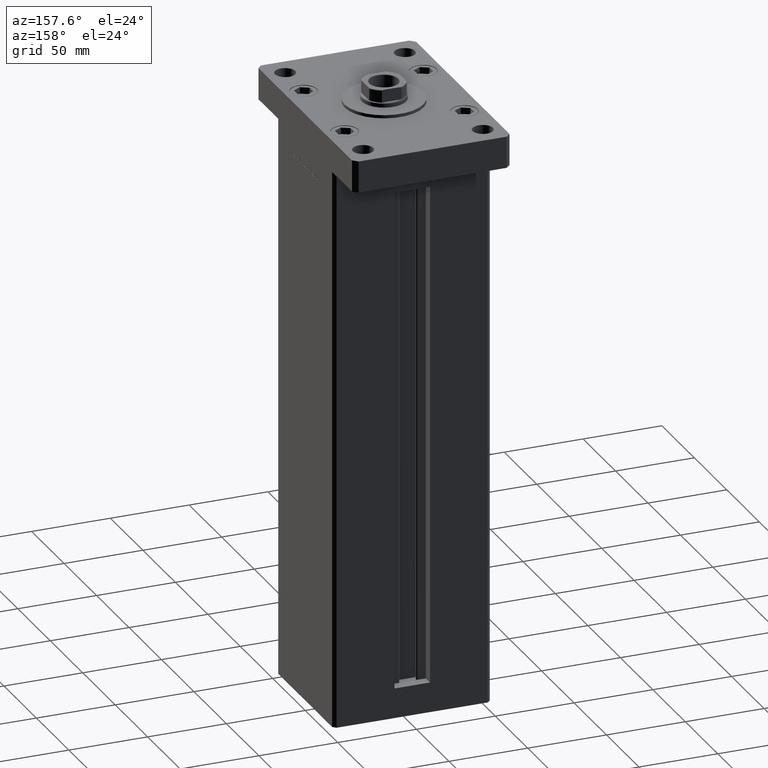
[diagram: clean part render]
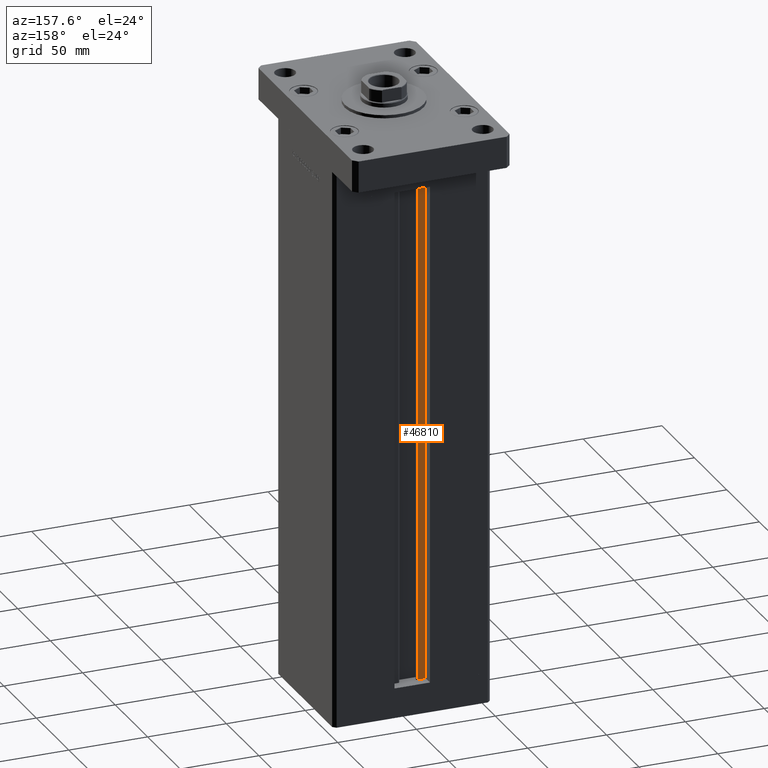
[diagram: same view with one face highlighted and labeled with its STEP entity id]
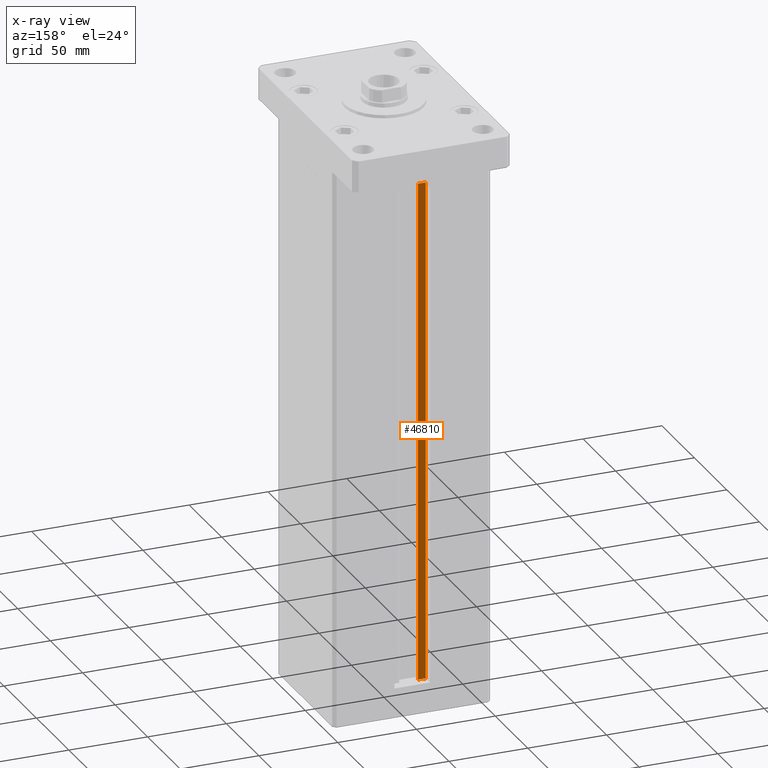
[diagram: x-ray of the same camera — body ghosted, the highlighted face saturated]
A machine part, auxiliary view. The second image highlights one B-rep face of the part: STEP entity #46810.
The next image is the same camera in x-ray: the body ghosted, the highlighted face saturated — about 0% of this face is hidden behind the body in this view.
In plain terms, the highlighted planar face has unit normal (0, -1, 0).
Its self-contained STEP definition (entity closure, byte-faithful):
#134 = DIRECTION ( 'NONE',  ( 0.000000000000000000, -1.000000000000000000, -0.000000000000000000 ) ) ;
#351 = LINE ( 'NONE', #36916, #37537 ) ;
#1464 = ORIENTED_EDGE ( 'NONE', *, *, #21105, .F. ) ;
#2880 = CARTESIAN_POINT ( 'NONE',  ( -6.183333333333997928, 36.99999999999999289, 0.000000000000000000 ) ) ;
#3859 = ORIENTED_EDGE ( 'NONE', *, *, #4535, .T. ) ;
#4502 = EDGE_CURVE ( 'NONE', #28013, #32548, #43370, .T. ) ;
#4535 = EDGE_CURVE ( 'NONE', #27473, #32548, #12423, .T. ) ;
#7346 = ORIENTED_EDGE ( 'NONE', *, *, #4502, .F. ) ;
#7909 = CARTESIAN_POINT ( 'NONE',  ( -6.183333333333997928, 36.99999999999999289, 0.000000000000000000 ) ) ;
#12402 = PLANE ( 'NONE',  #47193 ) ;
#12423 = LINE ( 'NONE', #23891, #21553 ) ;
#14077 = CARTESIAN_POINT ( 'NONE',  ( -6.183333333333997928, 36.99999999999999289, 318.5000000000000000 ) ) ;
#14982 = EDGE_LOOP ( 'NONE', ( #1464, #39133, #3859, #7346 ) ) ;
#21105 = EDGE_CURVE ( 'NONE', #33079, #28013, #39472, .T. ) ;
#21553 = VECTOR ( 'NONE', #28815, 1000.000000000000000 ) ;
#23891 = CARTESIAN_POINT ( 'NONE',  ( -11.24999999999999822, 36.99999999999999289, 0.000000000000000000 ) ) ;
#24686 = CARTESIAN_POINT ( 'NONE',  ( -6.183333333333997928, 36.99999999999999289, 0.000000000000000000 ) ) ;
#27473 = VERTEX_POINT ( 'NONE', #33058 ) ;
#28013 = VERTEX_POINT ( 'NONE', #14077 ) ;
#28815 = DIRECTION ( 'NONE',  ( -0.000000000000000000, -0.000000000000000000, 1.000000000000000000 ) ) ;
#32548 = VERTEX_POINT ( 'NONE', #52715 ) ;
#33058 = CARTESIAN_POINT ( 'NONE',  ( -11.24999999999999822, 36.99999999999999289, 0.000000000000000000 ) ) ;
#33079 = VERTEX_POINT ( 'NONE', #7909 ) ;
#34234 = DIRECTION ( 'NONE',  ( 0.000000000000000000, 0.000000000000000000, -1.000000000000000000 ) ) ;
#34651 = CARTESIAN_POINT ( 'NONE',  ( 0.000000000000000000, 36.99999999999999289, 318.5000000000000000 ) ) ;
#36916 = CARTESIAN_POINT ( 'NONE',  ( -6.183333333333997928, 36.99999999999999289, 0.000000000000000000 ) ) ;
#37537 = VECTOR ( 'NONE', #46177, 1000.000000000000000 ) ;
#37840 = VECTOR ( 'NONE', #47908, 1000.000000000000000 ) ;
#39133 = ORIENTED_EDGE ( 'NONE', *, *, #49525, .F. ) ;
#39472 = LINE ( 'NONE', #2880, #37840 ) ;
#43370 = LINE ( 'NONE', #34651, #44161 ) ;
#44161 = VECTOR ( 'NONE', #51285, 1000.000000000000000 ) ;
#46177 = DIRECTION ( 'NONE',  ( 1.000000000000000000, -0.000000000000000000, -0.000000000000000000 ) ) ;
#46810 = ADVANCED_FACE ( 'NONE', ( #50309 ), #12402, .F. ) ;
#47193 = AXIS2_PLACEMENT_3D ( 'NONE', #24686, #134, #34234 ) ;
#47908 = DIRECTION ( 'NONE',  ( -0.000000000000000000, -0.000000000000000000, 1.000000000000000000 ) ) ;
#49525 = EDGE_CURVE ( 'NONE', #27473, #33079, #351, .T. ) ;
#50309 = FACE_OUTER_BOUND ( 'NONE', #14982, .T. ) ;
#51285 = DIRECTION ( 'NONE',  ( -1.000000000000000000, 0.000000000000000000, 0.000000000000000000 ) ) ;
#52715 = CARTESIAN_POINT ( 'NONE',  ( -11.24999999999999822, 36.99999999999999289, 318.5000000000000000 ) ) ;